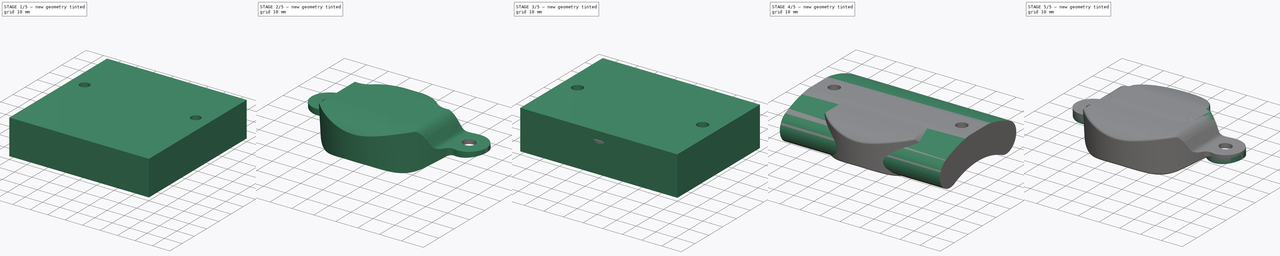
[diagram: build sequence overview — one tinted view per stage of 5, left to right]
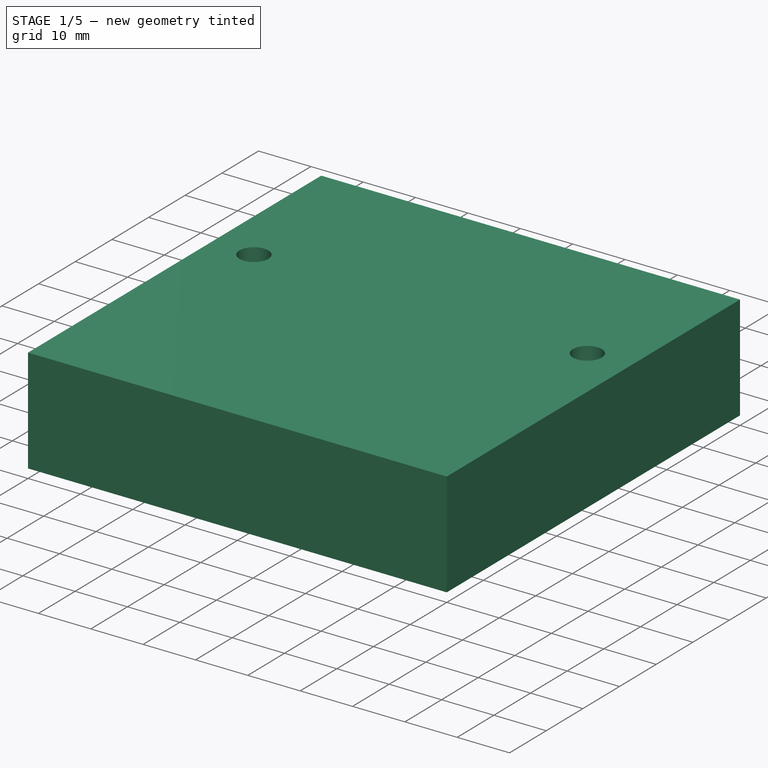
[diagram: stage 1 of 5 — iso view after this stage's code; geometry added in this stage tinted green]
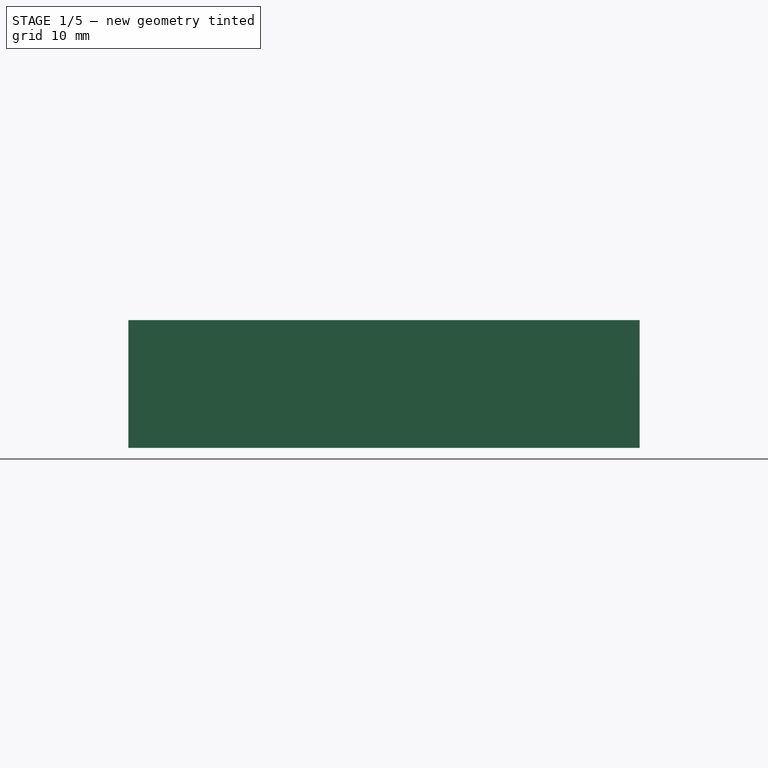
[diagram: stage 1 of 5 — front view after this stage's code; geometry added in this stage tinted green]
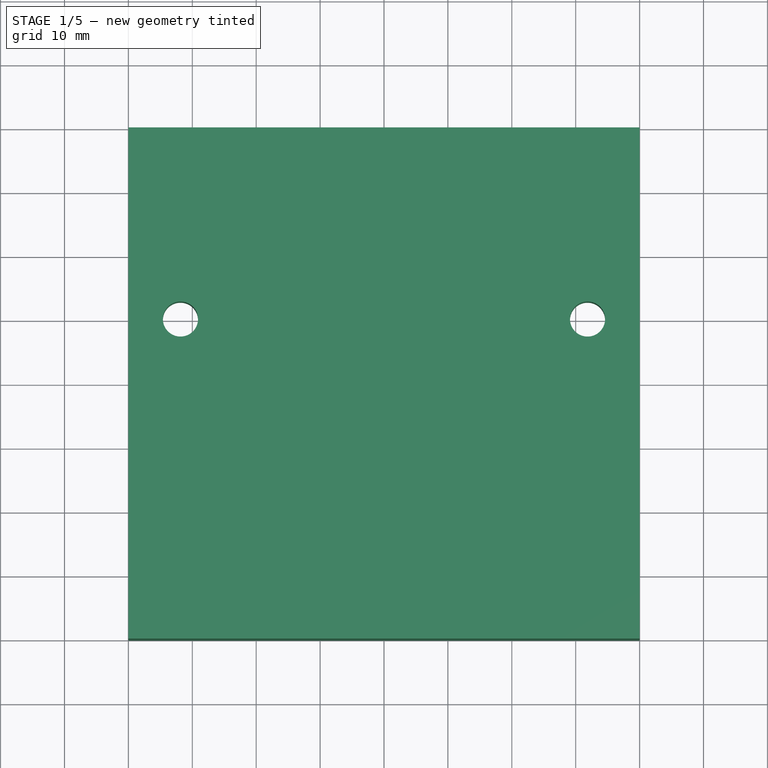
[diagram: stage 1 of 5 — top view after this stage's code; geometry added in this stage tinted green]
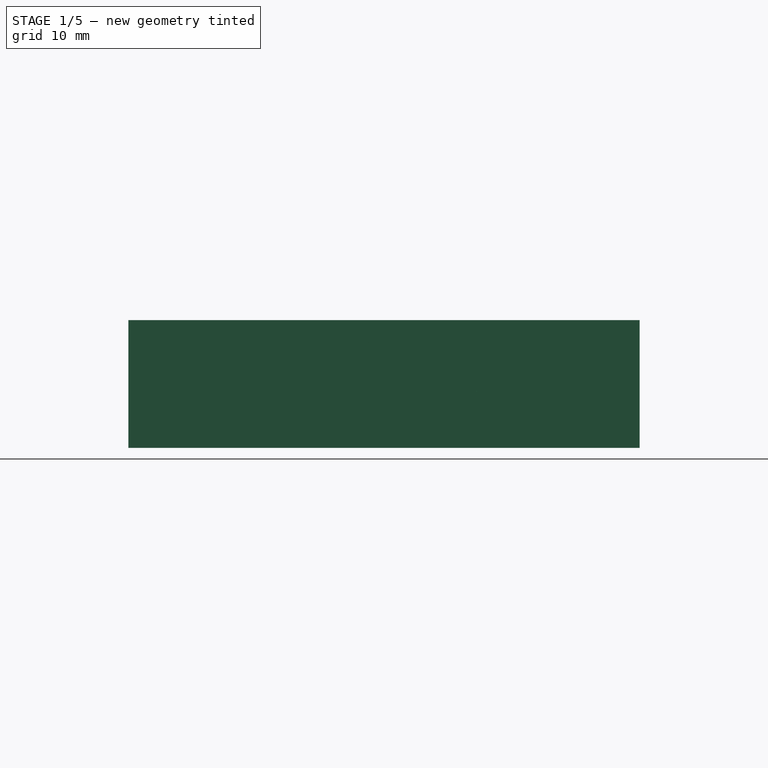
[diagram: stage 1 of 5 — right view after this stage's code; geometry added in this stage tinted green]
FCSTD DOCUMENT  (FreeCAD 1.1R20251125 (Git shallow))
Label: cube_tag_holder
License: All rights reserved
objects: Sketcher::SketchObject×14, PartDesign::Pocket×12, PartDesign::Fillet×3, PartDesign::Pad×2, PartDesign::Plane×2, App::Point×2, PartDesign::Body×2, PartDesign::Chamfer×1
note: 86 computed .brp shape members not serialized (recipe doc carries the construction recipe); baked Part::Feature solids carry a one-line shape summary decoded from their .brp

FEATURE [PartDesign::Body] Body  label="VariantA"
  AllowCompound = false
  Group = -> [Sketch,Pad,Sketch001,Pocket,DatumPlane,Sketch002,Pocket001,Fillet,Sketch005,Pocket003,Sketch006,Pocket004,Sketch007,Pocket005,Sketch008,Pocket006,Fillet001,Chamfer]
  Origin = -> Origin
  Tip = -> Chamfer
FEATURE [PartDesign::Plane] DatumPlane001
  AttachmentOffset = pos=(0,0,13) rot=(1,0,0;0.087266rad)
  AttachmentSupport = -> [XY_Plane001]
  Length = 93.4494
  MapMode = 2
  Placement = pos=(0,0,13) rot=(1,0,0;0.087266rad)
  ResizeMode = 0
  Width = 73.0631
FEATURE [App::Point] Origin004
  Role = Origin
FEATURE [Sketcher::SketchObject] Sketch009
  ArcFitTolerance = 1e-06
  AttachmentSupport = -> [XY_Plane001]
  ExternalTypes = [0]
  FullyConstrained = true
  MakeInternals = false
  MapMode = 5
  sketch-geometry (5):
    g0: LineSegment StartX=-40 StartY=-50 StartZ=0 EndX=40 EndY=-50 EndZ=0
    g1: LineSegment StartX=40 StartY=-50 StartZ=0 EndX=40 EndY=30 EndZ=0
    g2: LineSegment StartX=40 StartY=30 StartZ=0 EndX=-40 EndY=30 EndZ=0
    g3: LineSegment StartX=-40 StartY=30 StartZ=0 EndX=-40 EndY=-50 EndZ=0
    g4: GeomPoint [constr] X=0 Y=0 Z=0
  constraints (13):
    c: Coincident(g0,g1)
    c: Coincident(g1,g2)
    c: Coincident(g2,g3)
    c: Coincident(g3,g0)
    c: Horizontal(g0)
    c: Horizontal(g2)
    c: Vertical(g1)
    c: Vertical(g3)
    c: Distance(g1,g3) = 80
    c: Distance(g0,g2) = 80
    c: Coincident(g4,g-1)
    c: DistanceX(g2,g-1) = 40
    c: DistanceY(g-1,g1) = 30
FEATURE [PartDesign::Pad] Pad001
  Direction = (0,0,1)
  Length = 20
  Length2 = 10
  Profile = -> Sketch009
  ReferenceAxis = -> Sketch009 [N_Axis]
  Refine = true
  SideType = 0
  Suppressed = false
  Type = 0
  Type2 = 0
FEATURE [Sketcher::SketchObject] Sketch010
  ArcFitTolerance = 1e-06
  AttachmentSupport = -> [Pad001]
  ExternalTypes = [0]
  FullyConstrained = true
  MakeInternals = false
  MapMode = 5
  Placement = pos=(0,0,20) rot=(0,0,1;0rad)
  sketch-geometry (2):
    g0: Circle CenterX=31.85 CenterY=0 CenterZ=0 NormalX=0 NormalY=0 NormalZ=1 AngleXU=0 Radius=2.75
    g1: Circle CenterX=-31.85 CenterY=0 CenterZ=0 NormalX=0 NormalY=0 NormalZ=1 AngleXU=0 Radius=2.75
  constraints (6):
    c: Diameter(g0) = 5.5
    c: PointOnObject(g0,g-1)
    c: PointOnObject(g1,g-1)
    c: Equal(g0,g1)
    c: DistanceX(g1,g0) = 63.7
    c: DistanceX(g-1,g0) = 31.85
FEATURE [PartDesign::Pocket] Pocket007
  BaseFeature = -> Pad001
  Direction = (0,0,-1)
  Length = 5
  Length2 = 5
  Profile = -> Sketch010
  ReferenceAxis = -> Sketch010 [N_Axis]
  Refine = true
  SideType = 0
  Suppressed = false
  Type = 1
  Type2 = 0
FEATURE [Sketcher::SketchObject] Sketch011
  ArcFitTolerance = 1e-06
  AttachmentSupport = -> [DatumPlane001]
  ExternalTypes = [0]
  FullyConstrained = true
  MakeInternals = false
  MapMode = 5
  Placement = pos=(0,-2e-16,13) rot=(1,0,0;0.087266rad)
  sketch-geometry (1):
    g0: Circle CenterX=0 CenterY=-10 CenterZ=0 NormalX=0 NormalY=0 NormalZ=1 AngleXU=0 Radius=18.5
  constraints (3):
    c: Diameter(g0) = 37
    c: PointOnObject(g0,g-2)
    c: DistanceY(g0,g-1) = 10
FEATURE [PartDesign::Pocket] Pocket008
  BaseFeature = -> Pocket007
  Direction = (0,0.0871557,-0.996195)
  Length = 9
  Length2 = 5
  Profile = -> Sketch011
  ReferenceAxis = -> Sketch011 [N_Axis]
  Refine = true
  SideType = 2
  Suppressed = false
  Type = 0
  Type2 = 0
FEATURE [Sketcher::SketchObject] Sketch012
  ArcFitTolerance = 1e-06
  AttachmentSupport = -> [XY_Plane001]
  ExternalTypes = [0]
  FullyConstrained = true
  MakeInternals = false
  MapMode = 5
  sketch-geometry (2):
    g0: Circle CenterX=31.85 CenterY=0 CenterZ=0 NormalX=0 NormalY=0 NormalZ=1 AngleXU=0 Radius=6
    g1: Circle CenterX=-31.85 CenterY=0 CenterZ=0 NormalX=0 NormalY=0 NormalZ=1 AngleXU=0 Radius=6
  constraints (6):
    c: PointOnObject(g0,g-1)
    c: PointOnObject(g1,g-1)
    c: Diameter(g1) = 12
    c: Equal(g0,g1)
    c: Distance(g0,g1) = 63.7
    c: Distance(g0,g-2) = 31.85
FEATURE [PartDesign::Pocket] Pocket009
  BaseFeature = -> Pocket008
  Direction = (0,0,-1)
  Length = 7.5
  Length2 = 5
  Profile = -> Sketch012
  ReferenceAxis = -> Sketch012 [N_Axis]
  Refine = true
  Reversed = true
  SideType = 0
  Suppressed = false
  Type = 0
  Type2 = 0
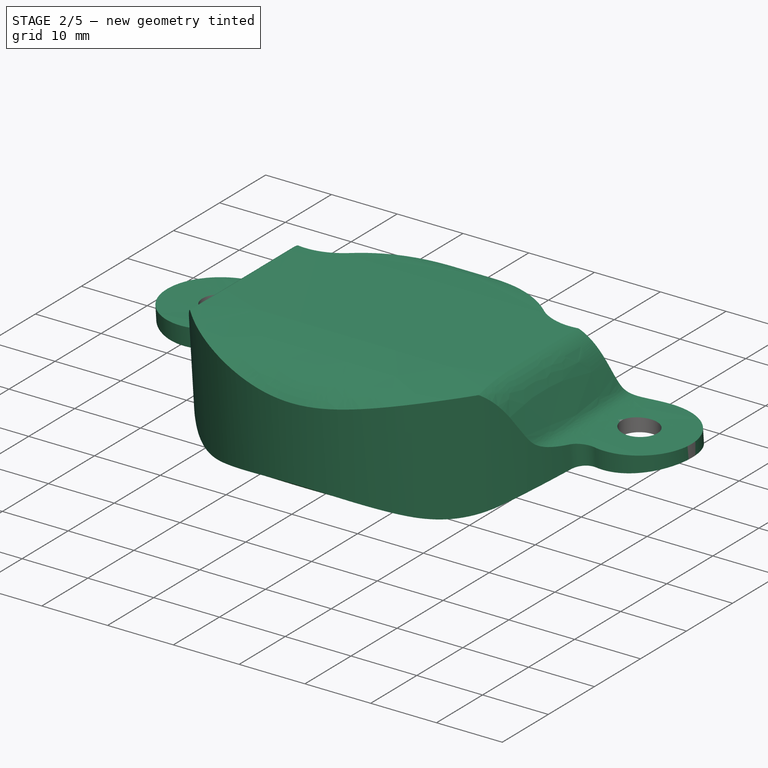
[diagram: stage 2 of 5 — iso view after this stage's code; geometry added in this stage tinted green]
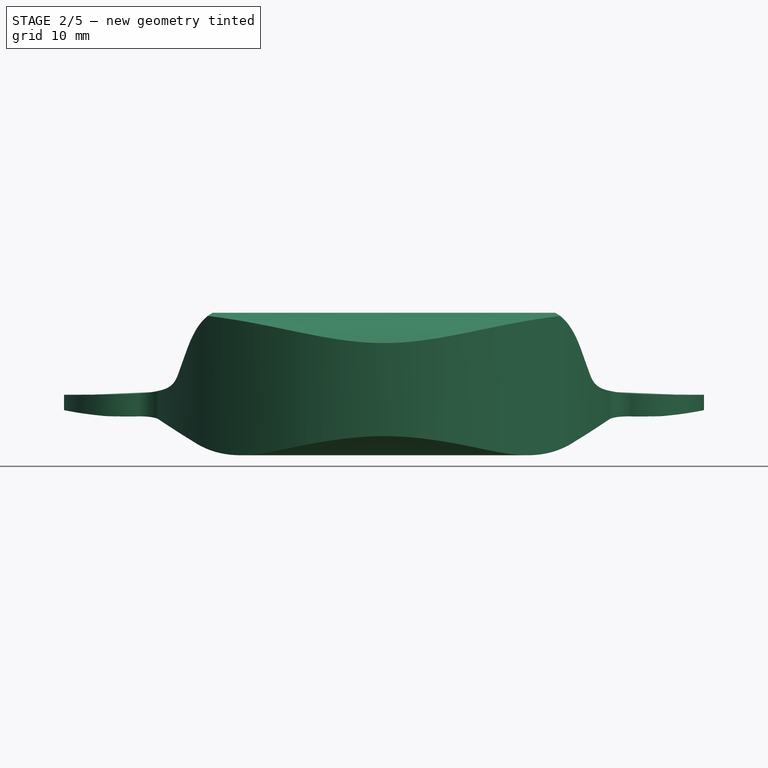
[diagram: stage 2 of 5 — front view after this stage's code; geometry added in this stage tinted green]
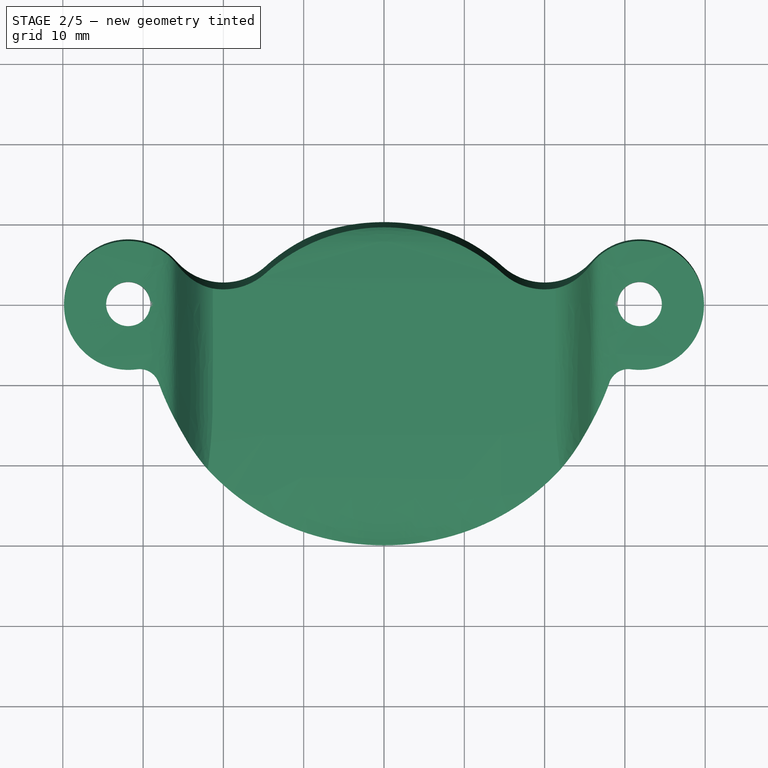
[diagram: stage 2 of 5 — top view after this stage's code; geometry added in this stage tinted green]
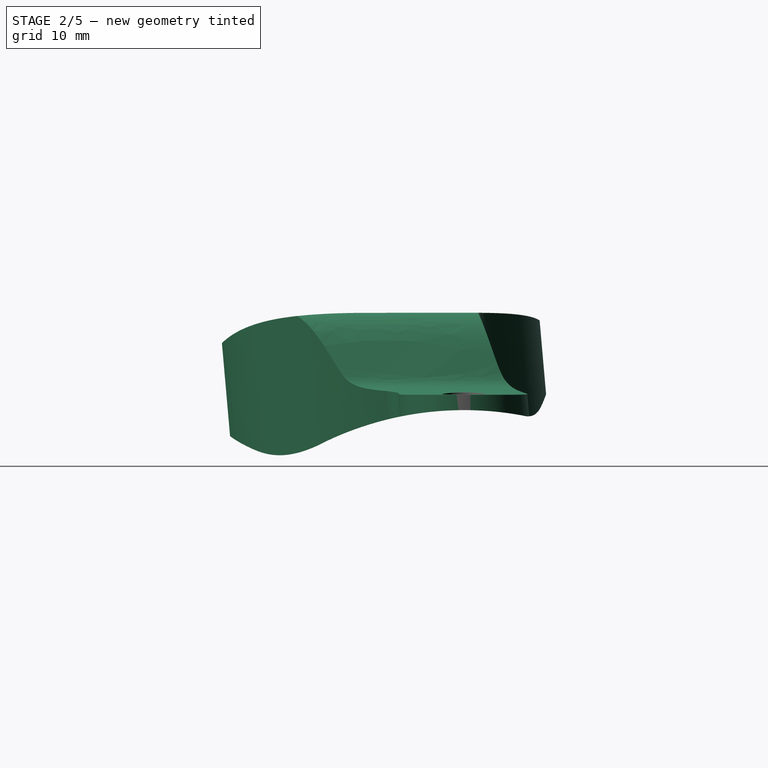
[diagram: stage 2 of 5 — right view after this stage's code; geometry added in this stage tinted green]
FEATURE [Sketcher::SketchObject] Sketch013
  ArcFitTolerance = 1e-06
  AttachmentSupport = -> [Pocket009]
  ExternalTypes = [0]
  FullyConstrained = false
  MakeInternals = false
  MapMode = 5
  Placement = pos=(40,0,0) rot=(0.57735,0.57735,0.57735;2.0944rad)
  sketch-geometry (36):
    g0: LineSegment StartX=100 StartY=-27.5 StartZ=0 EndX=100 EndY=27.5 EndZ=0
    g1: LineSegment StartX=100 StartY=27.5 StartZ=0 EndX=-100 EndY=27.5 EndZ=0
    g2: LineSegment StartX=-100 StartY=27.5 StartZ=0 EndX=-100 EndY=-27.5 EndZ=0
    g3: LineSegment StartX=-100 StartY=-27.5 StartZ=0 EndX=100 EndY=-27.5 EndZ=0
    g4: GeomPoint [constr] X=0 Y=0 Z=0
    g5: ArcOfCircle CenterX=0 CenterY=-32.5539 CenterZ=0 NormalX=0 NormalY=0 NormalZ=1 AngleXU=0 Radius=40 StartAngle=1.38736 EndAngle=2.016
    g6-g12: GeomPoint [constr] x7 (B-spline internal-alignment scaffolding for g13; pole/knot coordinates omitted)
    g13: BSplineCurve PolesCount=9 KnotsCount=7 Degree=3 IsPeriodic=0
    g14-g22: Circle [constr] x9 (B-spline internal-alignment scaffolding for g13; pole/knot coordinates omitted)
    g23-g27: GeomPoint [constr] x5 (B-spline internal-alignment scaffolding for g28; pole/knot coordinates omitted)
    g28: BSplineCurve PolesCount=7 KnotsCount=5 Degree=3 IsPeriodic=0
    g29-g35: Circle [constr] x7 (B-spline internal-alignment scaffolding for g28; pole/knot coordinates omitted)
  constraints (56):
    c: Coincident(g0,g1)
    c: Coincident(g1,g2)
    c: Coincident(g2,g3)
    c: Coincident(g3,g0)
    c: Vertical(g0)
    c: Vertical(g2)
    c: Horizontal(g1)
    c: Horizontal(g3)
    c: Symmetric(g2,g0,g4)
    c: Coincident(g4,g-1)
    c: DistanceX(g1,g1) = 200
    c: DistanceY(g2,g2) = 55
    c: PointOnObject(g5,g-2)
    c: Radius(g5) = 40
    c: InternalAlignment(g6-g12 -> g13) x7
    c: InternalAlignment(g14,g13)
    c: Weight(g14) = 1
    c: InternalAlignment(g15,g13)
    c: Equal(g15,g14)
    c: InternalAlignment(g16,g13)
    c: Equal(g16,g14)
    c: InternalAlignment(g17,g13)
    c: Equal(g17,g14)
    c: InternalAlignment(g18,g13)
    c: Equal(g18,g14)
    c: InternalAlignment(g19,g13)
    c: Equal(g19,g14)
    c: InternalAlignment(g20,g13)
    c: Equal(g20,g14)
    c: InternalAlignment(g21,g13)
    c: Equal(g21,g14)
    c: InternalAlignment(g22,g13)
    c: Equal(g22,g14)
    c: Coincident(g6,g5)
    c: PointOnObject(g12,g-2)
    c: Horizontal(g12,g21)
    c: Horizontal(g21,g20)
    c: InternalAlignment(g23-g27 -> g28) x5
    c: InternalAlignment(g29,g28)
    c: Weight(g29) = 1
    c: InternalAlignment(g30,g28)
    c: Equal(g30,g29)
    c: InternalAlignment(g31,g28)
    c: Equal(g31,g29)
    c: InternalAlignment(g32,g28)
    c: Equal(g32,g29)
    c: InternalAlignment(g33,g28)
    c: Equal(g33,g29)
    c: InternalAlignment(g34,g28)
    c: Equal(g34,g29)
    c: InternalAlignment(g35,g28)
    c: Equal(g35,g29)
    c: Coincident(g23,g5)
    c: Coincident(g27,g13)
    c: Horizontal(g33,g34)
    c: Horizontal(g34,g28)
FEATURE [PartDesign::Pocket] Pocket010
  BaseFeature = -> Pocket009
  Direction = (-1,0,0)
  Length = 5
  Length2 = 5
  Profile = -> Sketch013
  ReferenceAxis = -> Sketch013 [N_Axis]
  Refine = true
  SideType = 0
  Suppressed = false
  Type = 3
  Type2 = 0
  UpToFace = -> Pocket009 [Face2]
FEATURE [Sketcher::SketchObject] Sketch014
  ArcFitTolerance = 1e-06
  AttachmentSupport = -> [DatumPlane001]
  ExternalGeometry = -> [Pocket010]
  ExternalTypes = [0,0,0,0,0,0]
  FullyConstrained = false
  MakeInternals = false
  MapMode = 5
  Placement = pos=(0,-2e-16,13) rot=(1,0,0;0.087266rad)
  sketch-geometry (13):
    g0: LineSegment StartX=60 StartY=-60 StartZ=0 EndX=60 EndY=60 EndZ=0
    g1: LineSegment StartX=60 StartY=60 StartZ=0 EndX=-60 EndY=60 EndZ=0
    g2: LineSegment StartX=-60 StartY=60 StartZ=0 EndX=-60 EndY=-60 EndZ=0
    g3: LineSegment StartX=-60 StartY=-60 StartZ=0 EndX=60 EndY=-60 EndZ=0
    g4: GeomPoint [constr] X=0 Y=0 Z=0
    g5: ArcOfCircle CenterX=31.85 CenterY=-0.479357 CenterZ=0 NormalX=0 NormalY=0 NormalZ=1 AngleXU=0 Radius=8 StartAngle=4.57579 EndAngle=8.69564
    g6: ArcOfCircle CenterX=-31.85 CenterY=-0.479357 CenterZ=0 NormalX=0 NormalY=0 NormalZ=1 AngleXU=0 Radius=8 StartAngle=0.729138 EndAngle=4.84899
    g7: ArcOfCircle CenterX=-30.4202 CenterY=-10.8815 CenterZ=0 NormalX=0 NormalY=0 NormalZ=1 AngleXU=0 Radius=2.5 StartAngle=0.343525 EndAngle=1.7074
    g8: ArcOfCircle CenterX=30.4202 CenterY=-10.8815 CenterZ=0 NormalX=0 NormalY=0 NormalZ=1 AngleXU=0 Radius=2.5 StartAngle=1.4342 EndAngle=2.79807
    g9: ArcOfCircle CenterX=20 CenterY=10.107 CenterZ=0 NormalX=0 NormalY=0 NormalZ=1 AngleXU=0 Radius=7.89 StartAngle=3.98297 EndAngle=5.55405
    g10: ArcOfCircle CenterX=-20 CenterY=10.107 CenterZ=0 NormalX=0 NormalY=0 NormalZ=1 AngleXU=0 Radius=7.89 StartAngle=3.87073 EndAngle=5.44181
    g11: ArcOfCircle CenterX=0 CenterY=0 CenterZ=0 NormalX=0 NormalY=0 NormalZ=1 AngleXU=0 Radius=29.8078 StartAngle=3.48512 EndAngle=5.93966
    g12: ArcOfCircle CenterX=0 CenterY=-12.2677 CenterZ=0 NormalX=0 NormalY=0 NormalZ=1 AngleXU=0 Radius=22.1205 StartAngle=0.841379 EndAngle=2.30021
  constraints (29):
    c: Coincident(g0,g1)
    c: Coincident(g1,g2)
    c: Coincident(g2,g3)
    c: Coincident(g3,g0)
    c: Vertical(g0)
    c: Horizontal(g1)
    c: Horizontal(g3)
    c: Symmetric(g2,g0,g4)
    c: Coincident(g4,g-1)
    c: DistanceX(g1,g1) = 120
    c: DistanceY(g2,g2) = 120
    c: Coincident(g5,g-23)
    c: Coincident(g6,g-24)
    c: Tangent(g7,g11) = 1.5708
    c: Coincident(g4,g11)
    c: Diameter(g6) = 16
    c: Tangent(g7,g6) = 1.5708
    c: Diameter(g5) = 16
    c: Tangent(g11,g8) = 1.5708
    c: Tangent(g5,g8) = 1.5708
    c: Radius(g7) = 2.5
    c: Equal(g7,g8)
    c: PointOnObject(g12,g-2)
    c: Tangent(g5,g9) = 1.5708
    c: Tangent(g12,g9) = 1.5708
    c: Tangent(g6,g10) = 1.5708
    c: Tangent(g12,g10) = 1.5708
    c: Radius(g10) = 7.89
    c: Equal(g10,g9)
FEATURE [PartDesign::Pocket] Pocket011
  BaseFeature = -> Pocket010
  Direction = (0,0.0871557,-0.996195)
  Length = 5
  Length2 = 5
  Profile = -> Sketch014
  ReferenceAxis = -> Sketch014 [N_Axis]
  Refine = true
  SideType = 1
  Suppressed = false
  Type = 1
  Type2 = 1
FEATURE [Sketcher::SketchObject] Sketch015
  ArcFitTolerance = 1e-06
  AttachmentSupport = -> [Origin003]
  ExternalTypes = [0]
  FullyConstrained = false
  MakeInternals = false
  MapMode = 5
  Placement = pos=(0,0,0) rot=(1,0,0;1.5708rad)
  sketch-geometry (25):
    g0: LineSegment StartX=55.1371 StartY=12.8511 StartZ=0 EndX=55.1371 EndY=39.0441 EndZ=0
    g1: LineSegment StartX=55.1371 StartY=39.0441 StartZ=0 EndX=-55.1371 EndY=39.0441 EndZ=0
    g2: LineSegment StartX=-55.1371 StartY=39.0441 StartZ=0 EndX=-55.1371 EndY=12.8511 EndZ=0
    g3: GeomPoint [constr] X=0 Y=0 Z=0
    g4: LineSegment StartX=-19.514 StartY=20 StartZ=0 EndX=19.514 EndY=20 EndZ=0
    g5-g9: Circle [constr] x5 (B-spline internal-alignment scaffolding for g10; pole/knot coordinates omitted)
    g10: BSplineCurve PolesCount=5 KnotsCount=3 Degree=3 IsPeriodic=0
    g11: GeomPoint [constr] X=19.514 Y=20 Z=0
    g12: GeomPoint [constr] X=25.572 Y=12.0163 Z=0
    g13: GeomPoint [constr] X=42.5914 Y=9.35507 Z=0
    g14: BSplineCurve PolesCount=5 KnotsCount=3 Degree=3 IsPeriodic=0
    g15-g19: Circle [constr] x5 (B-spline internal-alignment scaffolding for g14; pole/knot coordinates omitted)
    g20: GeomPoint [constr] X=-19.514 Y=20 Z=0
    g21: GeomPoint [constr] X=-25.572 Y=12.0163 Z=0
    g22: GeomPoint [constr] X=-42.5914 Y=9.35507 Z=0
    g23: LineSegment StartX=-42.5914 StartY=9.35507 StartZ=0 EndX=-55.1371 EndY=12.8511 EndZ=0
    g24: LineSegment StartX=42.5914 StartY=9.35507 StartZ=0 EndX=55.1371 EndY=12.8511 EndZ=0
  constraints (27):
    c: Coincident(g0,g1)
    c: Coincident(g1,g2)
    c: Horizontal(g1)
    c: Coincident(g3,g-1)
    c: Coincident(g4,g-3)
    c: Coincident(g4,g-3)
    c: Weight(g5) = 1
    c: Equal(g5, g6-g9) x4
    c: InternalAlignment(g5-g9 -> g10) x5
    c: InternalAlignment(g11,g10)
    c: InternalAlignment(g12,g10)
    c: InternalAlignment(g13,g10)
    c: Distance(g5,g6) = 4
    c: Distance(g7,g8) = 2
    c: Distance(g8,g9) = 15
    c: Coincident(g5,g4)
    c: Weight(g15) = 1
    c: Equal(g15, g16-g19) x4
    c: InternalAlignment(g15-g22 -> g14) x8
    c: Distance(g15,g16) = 4
    c: Distance(g17,g18) = 2
    c: Distance(g18,g19) = 15
    c: Coincident(g23,g14)
    c: Vertical(g2)
    c: Coincident(g23,g2)
    c: Vertical(g0)
    c: Coincident(g0,g24)
FEATURE [PartDesign::Pocket] Pocket012
  BaseFeature = -> Pocket011
  Direction = (0,1,-2e-16)
  Length = 5
  Length2 = 5
  Profile = -> Sketch015
  ReferenceAxis = -> Sketch015 [N_Axis]
  Refine = true
  SideType = 2
  Suppressed = false
  Type = 1
  Type2 = 0
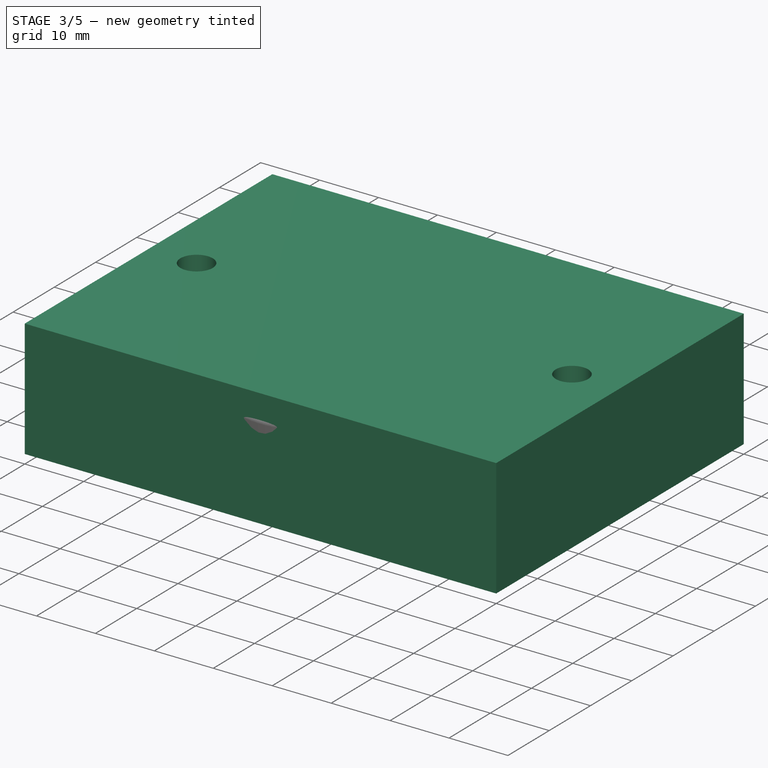
[diagram: stage 3 of 5 — iso view after this stage's code; geometry added in this stage tinted green]
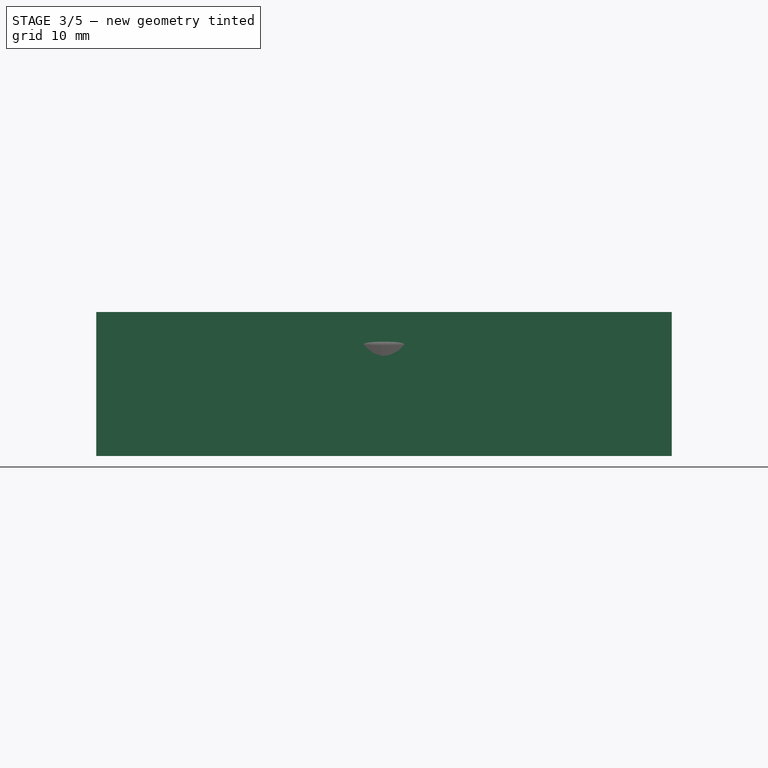
[diagram: stage 3 of 5 — front view after this stage's code; geometry added in this stage tinted green]
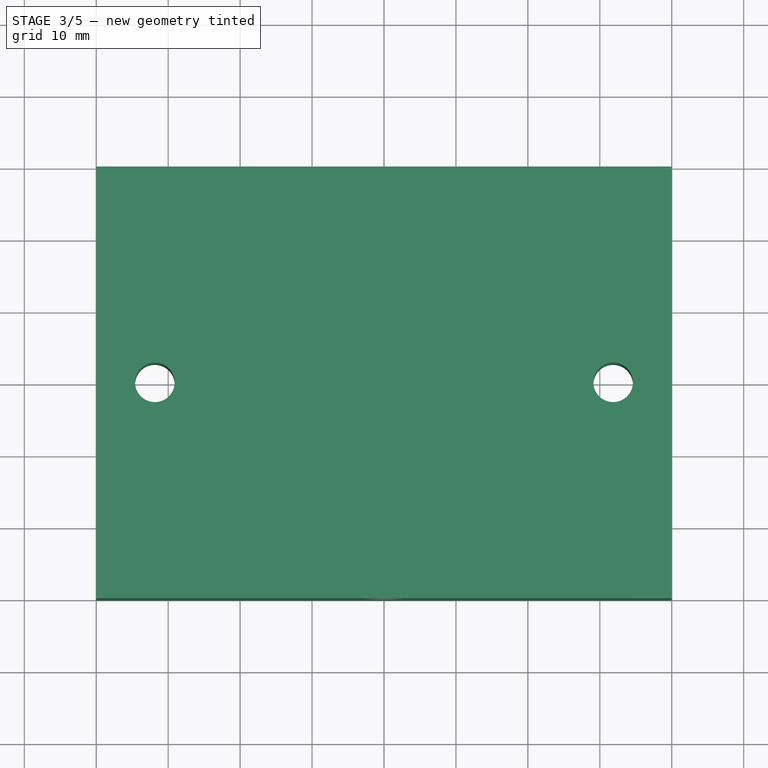
[diagram: stage 3 of 5 — top view after this stage's code; geometry added in this stage tinted green]
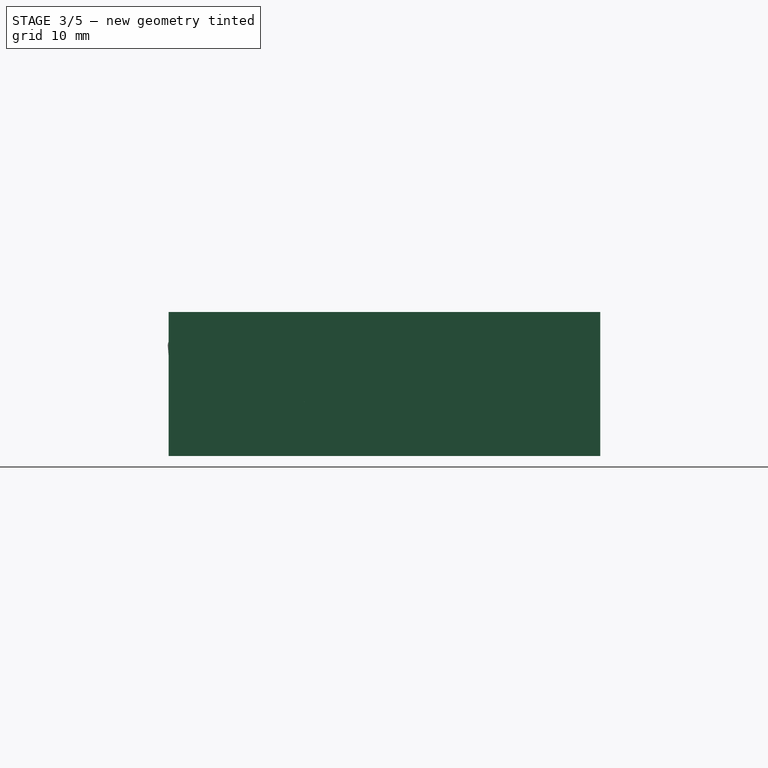
[diagram: stage 3 of 5 — right view after this stage's code; geometry added in this stage tinted green]
FEATURE [Sketcher::SketchObject] Sketch
  ArcFitTolerance = 1e-06
  AttachmentSupport = -> [XY_Plane]
  ExternalTypes = [0]
  FullyConstrained = true
  MakeInternals = false
  MapMode = 5
  sketch-geometry (5):
    g0: LineSegment StartX=-40 StartY=-30 StartZ=0 EndX=40 EndY=-30 EndZ=0
    g1: LineSegment StartX=40 StartY=-30 StartZ=0 EndX=40 EndY=30 EndZ=0
    g2: LineSegment StartX=40 StartY=30 StartZ=0 EndX=-40 EndY=30 EndZ=0
    g3: LineSegment StartX=-40 StartY=30 StartZ=0 EndX=-40 EndY=-30 EndZ=0
    g4: GeomPoint [constr] X=0 Y=0 Z=0
  constraints (12):
    c: Coincident(g0,g1)
    c: Coincident(g1,g2)
    c: Coincident(g2,g3)
    c: Coincident(g3,g0)
    c: Horizontal(g0)
    c: Horizontal(g2)
    c: Vertical(g1)
    c: Vertical(g3)
    c: Symmetric(g2,g0,g4)
    c: Distance(g1,g3) = 80
    c: Distance(g0,g2) = 60
    c: Coincident(g4,g-1)
FEATURE [PartDesign::Pad] Pad
  Direction = (0,0,1)
  Length = 20
  Length2 = 10
  Profile = -> Sketch
  ReferenceAxis = -> Sketch [N_Axis]
  Refine = true
  SideType = 0
  Suppressed = false
  Type = 0
  Type2 = 0
FEATURE [Sketcher::SketchObject] Sketch001
  ArcFitTolerance = 1e-06
  AttachmentSupport = -> [Pad]
  ExternalTypes = [0]
  FullyConstrained = true
  MakeInternals = false
  MapMode = 5
  Placement = pos=(0,0,20) rot=(0,0,1;0rad)
  sketch-geometry (2):
    g0: Circle CenterX=31.85 CenterY=0 CenterZ=0 NormalX=0 NormalY=0 NormalZ=1 AngleXU=0 Radius=2.75
    g1: Circle CenterX=-31.85 CenterY=0 CenterZ=0 NormalX=0 NormalY=0 NormalZ=1 AngleXU=0 Radius=2.75
  constraints (6):
    c: Diameter(g0) = 5.5
    c: PointOnObject(g0,g-1)
    c: PointOnObject(g1,g-1)
    c: Equal(g0,g1)
    c: DistanceX(g1,g0) = 63.7
    c: DistanceX(g-1,g0) = 31.85
FEATURE [PartDesign::Pocket] Pocket
  BaseFeature = -> Pad
  Direction = (0,0,-1)
  Length = 5
  Length2 = 5
  Profile = -> Sketch001
  ReferenceAxis = -> Sketch001 [N_Axis]
  Refine = true
  SideType = 0
  Suppressed = false
  Type = 1
  Type2 = 0
FEATURE [PartDesign::Plane] DatumPlane
  AttachmentOffset = pos=(0,0,13) rot=(0,0,1;0rad)
  AttachmentSupport = -> [XY_Plane]
  Length = 92.3254
  MapMode = 2
  Placement = pos=(0,0,13) rot=(0,0,1;0rad)
  ResizeMode = 0
  Width = 62.6254
FEATURE [Sketcher::SketchObject] Sketch002
  ArcFitTolerance = 1e-06
  AttachmentSupport = -> [DatumPlane]
  ExternalTypes = [0]
  FullyConstrained = true
  MakeInternals = false
  MapMode = 5
  Placement = pos=(0,0,13) rot=(0,0,1;0rad)
  sketch-geometry (1):
    g0: Circle CenterX=0 CenterY=0 CenterZ=0 NormalX=0 NormalY=0 NormalZ=1 AngleXU=0 Radius=18.5
  constraints (2):
    c: Diameter(g0) = 37
    c: Coincident(g0,g-1)
FEATURE [PartDesign::Pocket] Pocket001
  BaseFeature = -> Pocket
  Direction = (0,0,-1)
  Length = 9
  Length2 = 5
  Profile = -> Sketch002
  ReferenceAxis = -> Sketch002 [N_Axis]
  Refine = true
  SideType = 2
  Suppressed = false
  Type = 0
  Type2 = 0
FEATURE [PartDesign::Fillet] Fillet002
  Base = -> Pocket012 [Edge5,Edge13,Edge46,Edge12,Edge14]
  BaseFeature = -> Pocket012
  Radius = 1
  Refine = true
  SupportTransform = false
  Suppressed = false
  UseAllEdges = false
FEATURE [PartDesign::Body] Body001  label="VariantB"
  AllowCompound = true
  Group = -> [Sketch009,Pad001,Sketch010,Pocket007,DatumPlane001,Sketch011,Pocket008,Sketch012,Pocket009,Sketch013,Pocket010,Sketch014,Pocket011,Sketch015,Pocket012,Fillet002]
  Origin = -> Origin003
  Tip = -> Fillet002
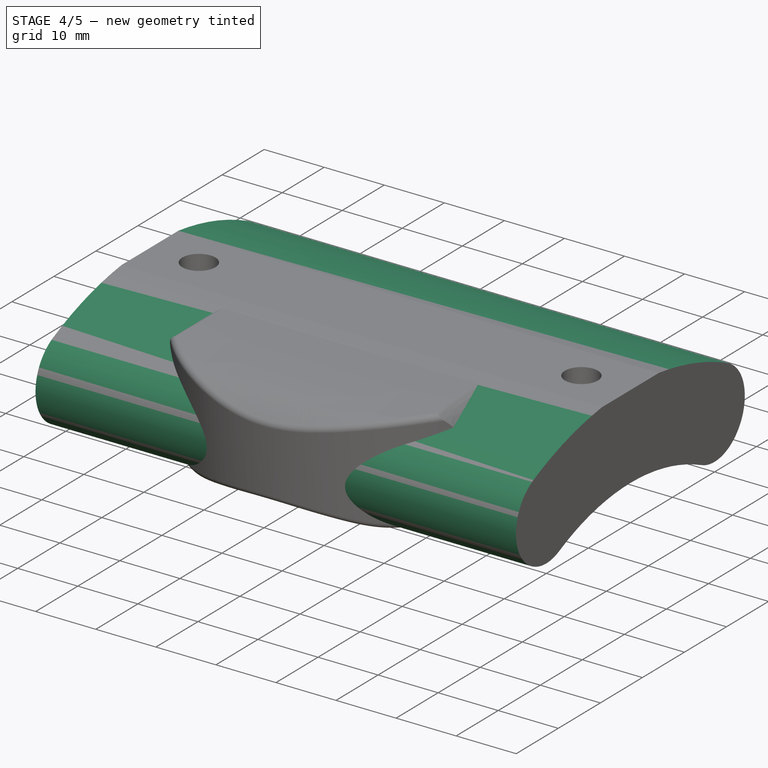
[diagram: stage 4 of 5 — iso view after this stage's code; geometry added in this stage tinted green]
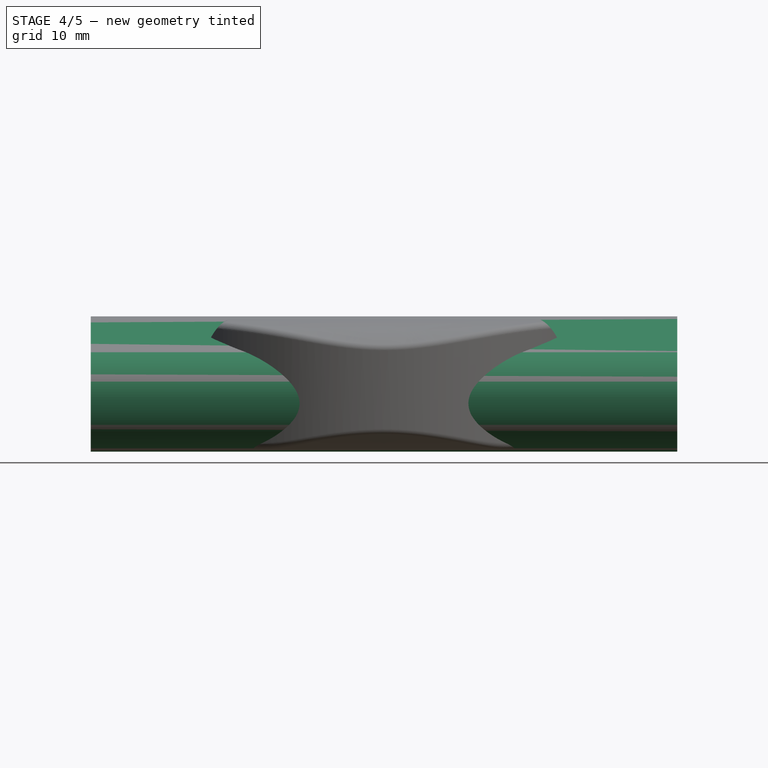
[diagram: stage 4 of 5 — front view after this stage's code; geometry added in this stage tinted green]
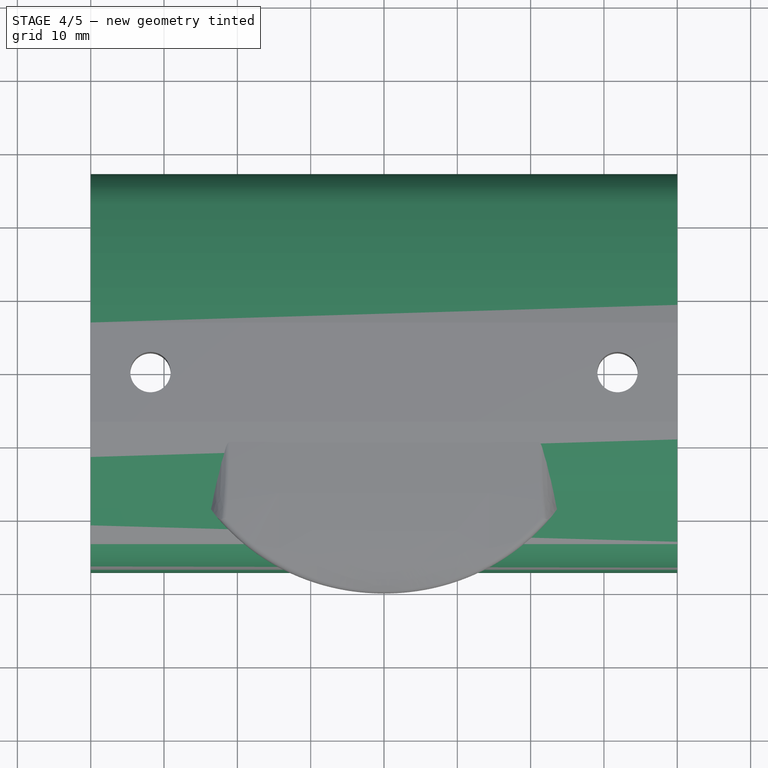
[diagram: stage 4 of 5 — top view after this stage's code; geometry added in this stage tinted green]
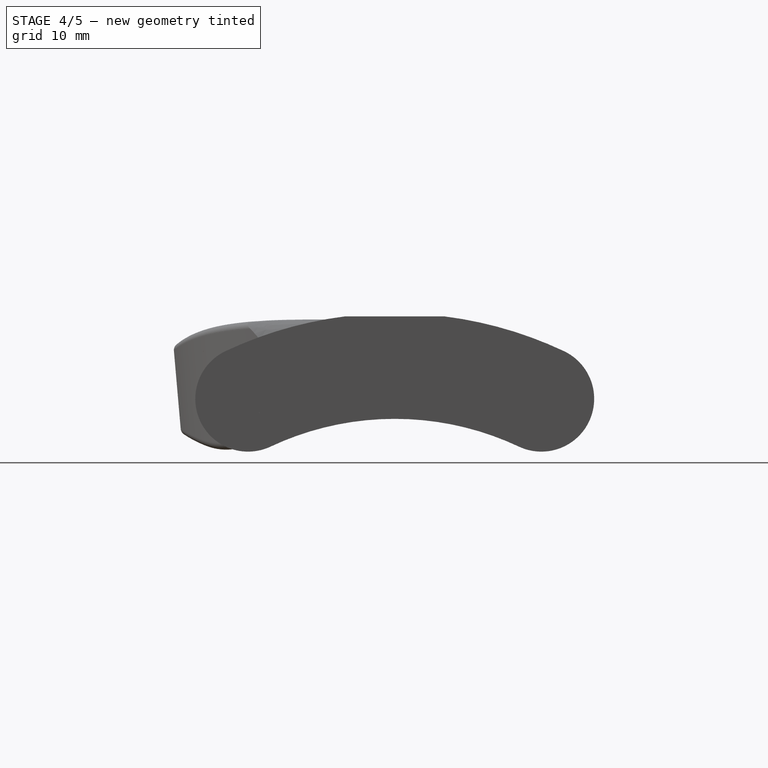
[diagram: stage 4 of 5 — right view after this stage's code; geometry added in this stage tinted green]
FEATURE [PartDesign::Fillet] Fillet
  Base = -> Pocket001 [Edge21,Edge20]
  BaseFeature = -> Pocket001
  Radius = 2
  Refine = true
  SupportTransform = false
  Suppressed = false
  UseAllEdges = false
FEATURE [Sketcher::SketchObject] Sketch005
  ArcFitTolerance = 1e-06
  AttachmentSupport = -> [XY_Plane]
  ExternalTypes = [0]
  FullyConstrained = true
  MakeInternals = false
  MapMode = 5
  sketch-geometry (2):
    g0: Circle CenterX=31.85 CenterY=0 CenterZ=0 NormalX=0 NormalY=0 NormalZ=1 AngleXU=0 Radius=6
    g1: Circle CenterX=-31.85 CenterY=0 CenterZ=0 NormalX=0 NormalY=0 NormalZ=1 AngleXU=0 Radius=6
  constraints (6):
    c: PointOnObject(g0,g-1)
    c: PointOnObject(g1,g-1)
    c: Diameter(g1) = 12
    c: Equal(g0,g1)
    c: Distance(g0,g1) = 63.7
    c: Distance(g0,g-2) = 31.85
FEATURE [PartDesign::Pocket] Pocket003
  BaseFeature = -> Fillet
  Direction = (0,0,-1)
  Length = 7.5
  Length2 = 5
  Profile = -> Sketch005
  ReferenceAxis = -> Sketch005 [N_Axis]
  Refine = true
  Reversed = true
  SideType = 0
  Suppressed = false
  Type = 0
  Type2 = 0
FEATURE [App::Point] Origin002  label="Origin"
  Role = Origin
FEATURE [Sketcher::SketchObject] Sketch006
  ArcFitTolerance = 1e-06
  AttachmentSupport = -> [Pocket003]
  ExternalTypes = [0]
  FullyConstrained = false
  MakeInternals = false
  MapMode = 5
  Placement = pos=(40,0,0) rot=(0.57735,0.57735,0.57735;2.0944rad)
  sketch-geometry (9):
    g0: ArcOfCircle CenterX=0 CenterY=-33.7367 CenterZ=0 NormalX=0 NormalY=0 NormalZ=1 AngleXU=0 Radius=54.1612 StartAngle=1.13086 EndAngle=2.01073
    g1: ArcOfCircle CenterX=-20 CenterY=8.75279 CenterZ=0 NormalX=0 NormalY=0 NormalZ=1 AngleXU=0 Radius=7.2 StartAngle=2.01073 EndAngle=5.15233
    g2: ArcOfCircle CenterX=20 CenterY=8.75279 CenterZ=0 NormalX=0 NormalY=0 NormalZ=1 AngleXU=0 Radius=7.2 StartAngle=4.27245 EndAngle=7.41404
    g3: ArcOfCircle CenterX=0 CenterY=-33.7367 CenterZ=0 NormalX=0 NormalY=0 NormalZ=1 AngleXU=0 Radius=39.7612 StartAngle=1.13086 EndAngle=2.01073
    g4: LineSegment StartX=35 StartY=-27.5 StartZ=0 EndX=35 EndY=27.5 EndZ=0
    g5: LineSegment StartX=35 StartY=27.5 StartZ=0 EndX=-35 EndY=27.5 EndZ=0
    g6: LineSegment StartX=-35 StartY=27.5 StartZ=0 EndX=-35 EndY=-27.5 EndZ=0
    g7: LineSegment StartX=-35 StartY=-27.5 StartZ=0 EndX=35 EndY=-27.5 EndZ=0
    g8: GeomPoint [constr] X=0 Y=0 Z=0
  constraints (21):
    c: Coincident(g0,g3)
    c: Tangent(g3,g2) = 1.5708
    c: Tangent(g3,g1) = 1.5708
    c: Tangent(g0,g2) = -1.5708
    c: Tangent(g0,g1) = -1.5708
    c: PointOnObject(g0,g-2)
    c: Horizontal(g1,g2)
    c: DistanceX(g-1,g2) = 20
    c: Radius(g2) = 7.2
    c: Coincident(g4,g5)
    c: Coincident(g5,g6)
    c: Coincident(g6,g7)
    c: Coincident(g7,g4)
    c: Vertical(g4)
    c: Vertical(g6)
    c: Horizontal(g5)
    c: Horizontal(g7)
    c: Symmetric(g6,g4,g8)
    c: Coincident(g8,g-1)
    c: DistanceX(g5,g5) = 70
    c: DistanceY(g6,g6) = 55
FEATURE [PartDesign::Pocket] Pocket004
  BaseFeature = -> Pocket003
  Direction = (-1,0,0)
  Length = 5
  Length2 = 5
  Profile = -> Sketch006
  ReferenceAxis = -> Sketch006 [N_Axis]
  Refine = true
  SideType = 0
  Suppressed = false
  Type = 3
  Type2 = 0
  UpToFace = -> Pocket003 [Face2]
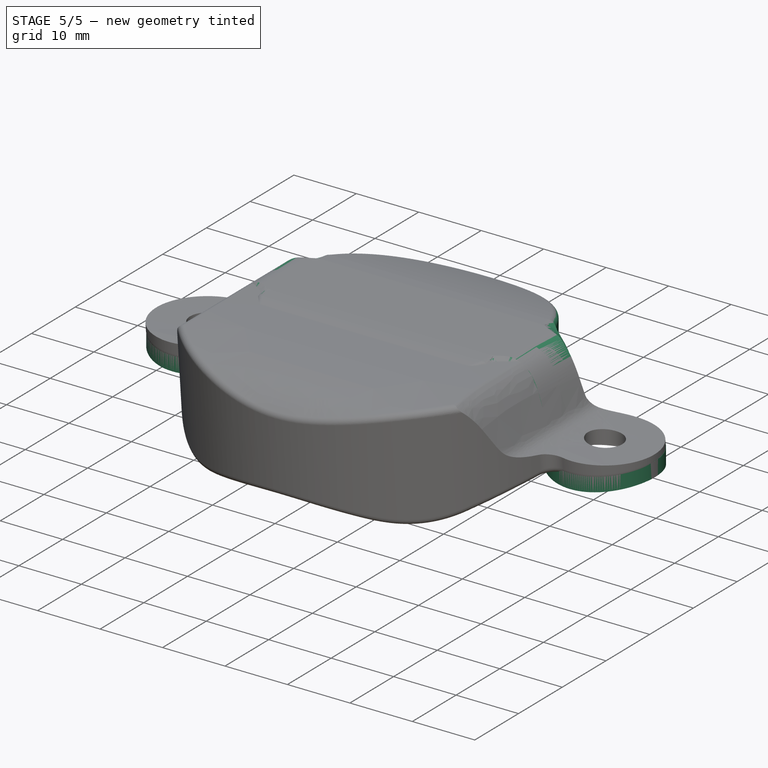
[diagram: stage 5 of 5 — iso view after this stage's code; geometry added in this stage tinted green]
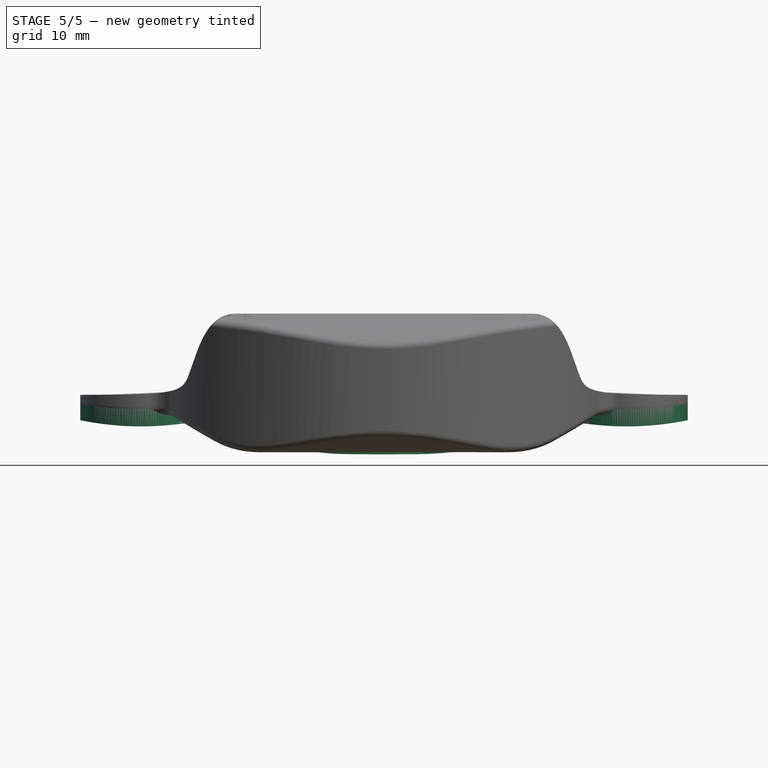
[diagram: stage 5 of 5 — front view after this stage's code; geometry added in this stage tinted green]
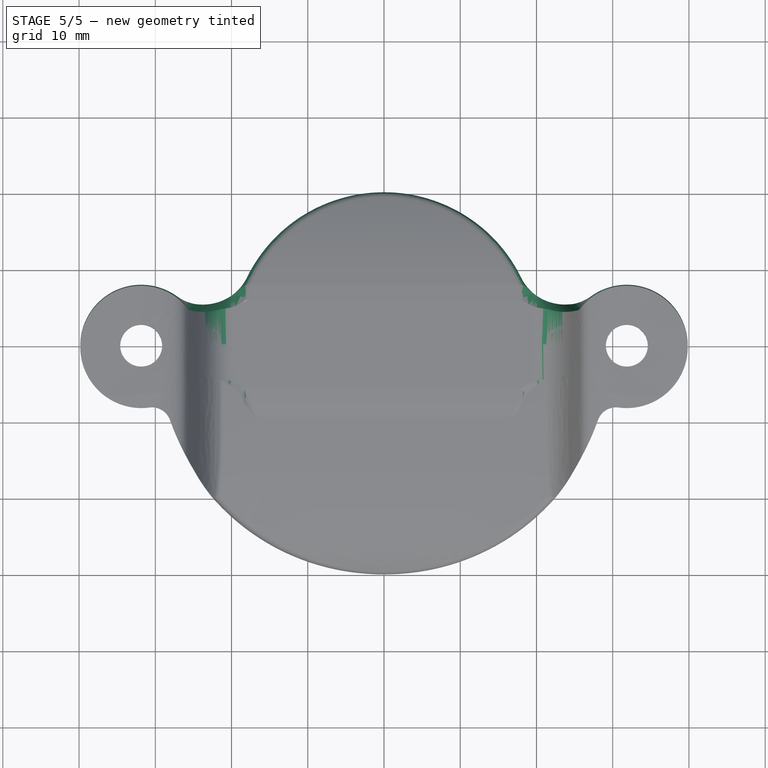
[diagram: stage 5 of 5 — top view after this stage's code; geometry added in this stage tinted green]
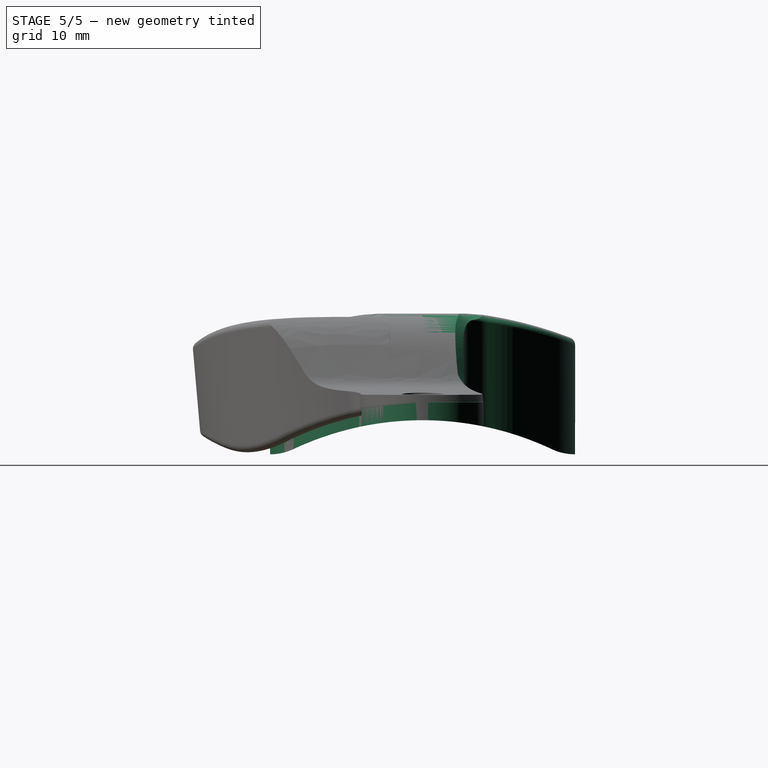
[diagram: stage 5 of 5 — right view after this stage's code; geometry added in this stage tinted green]
FEATURE [Sketcher::SketchObject] Sketch007
  ArcFitTolerance = 1e-06
  AttachmentSupport = -> [DatumPlane]
  ExternalGeometry = -> [Pocket004]
  ExternalTypes = [0,0,0,0,0,0]
  FullyConstrained = false
  MakeInternals = false
  MapMode = 5
  Placement = pos=(0,0,13) rot=(0,0,1;0rad)
  sketch-geometry (13):
    g0: LineSegment StartX=60 StartY=-60 StartZ=0 EndX=60 EndY=60 EndZ=0
    g1: LineSegment StartX=60 StartY=60 StartZ=0 EndX=-60 EndY=60 EndZ=0
    g2: LineSegment StartX=-60 StartY=60 StartZ=0 EndX=-60 EndY=-60 EndZ=0
    g3: LineSegment StartX=-60 StartY=-60 StartZ=0 EndX=60 EndY=-60 EndZ=0
    g4: GeomPoint [constr] X=0 Y=0 Z=0
    g5: ArcOfCircle CenterX=0 CenterY=0 CenterZ=0 NormalX=0 NormalY=0 NormalZ=1 AngleXU=0 Radius=20 StartAngle=0.45271 EndAngle=2.68888
    g6: ArcOfCircle CenterX=31.85 CenterY=0 CenterZ=0 NormalX=0 NormalY=0 NormalZ=1 AngleXU=0 Radius=8 StartAngle=4.08284 EndAngle=8.48353
    g7: ArcOfCircle CenterX=-31.85 CenterY=0 CenterZ=0 NormalX=0 NormalY=0 NormalZ=1 AngleXU=0 Radius=8 StartAngle=0.941249 EndAngle=5.34194
    g8: ArcOfCircle CenterX=-23.5176 CenterY=-11.439 CenterZ=0 NormalX=0 NormalY=0 NormalZ=1 AngleXU=0 Radius=6.15202 StartAngle=0.45271 EndAngle=2.20034
    g9: ArcOfCircle CenterX=23.5176 CenterY=-11.439 CenterZ=0 NormalX=0 NormalY=0 NormalZ=1 AngleXU=0 Radius=6.15202 StartAngle=0.94125 EndAngle=2.68888
    g10: ArcOfCircle CenterX=23.5176 CenterY=11.439 CenterZ=0 NormalX=0 NormalY=0 NormalZ=1 AngleXU=0 Radius=6.15202 StartAngle=3.5943 EndAngle=5.34194
    g11: ArcOfCircle CenterX=-23.5176 CenterY=11.439 CenterZ=0 NormalX=0 NormalY=0 NormalZ=1 AngleXU=0 Radius=6.15202 StartAngle=4.08284 EndAngle=5.83047
    g12: ArcOfCircle CenterX=0 CenterY=0 CenterZ=0 NormalX=0 NormalY=0 NormalZ=1 AngleXU=0 Radius=20 StartAngle=3.5943 EndAngle=5.83048
  constraints (27):
    c: Coincident(g0,g1)
    c: Coincident(g1,g2)
    c: Coincident(g2,g3)
    c: Coincident(g3,g0)
    c: Vertical(g0)
    c: Vertical(g2)
    c: Horizontal(g1)
    c: Horizontal(g3)
    c: Symmetric(g2,g0,g4)
    c: Coincident(g4,g-1)
    c: DistanceX(g1,g1) = 120
    c: DistanceY(g2,g2) = 120
    c: Coincident(g5,g4)
    c: Coincident(g6,g-23)
    c: Coincident(g7,g-24)
    c: Coincident(g12,g9)
    c: Coincident(g5,g10)
    c: Diameter(g5) = 40
    c: Tangent(g8,g12) = 1.5708
    c: Coincident(g5,g11)
    c: Coincident(g5,g12)
    c: Diameter(g7) = 16
    c: Tangent(g8,g7) = 1.5708
    c: Coincident(g7,g11)
    c: Diameter(g6) = 16
    c: Coincident(g6,g10)
    c: Coincident(g6,g9)
FEATURE [PartDesign::Pocket] Pocket005
  BaseFeature = -> Pocket004
  Direction = (0,0,-1)
  Length = 5
  Length2 = 5
  Profile = -> Sketch007
  ReferenceAxis = -> Sketch007 [N_Axis]
  Refine = true
  SideType = 1
  Suppressed = false
  Type = 1
  Type2 = 1
FEATURE [Sketcher::SketchObject] Sketch008
  ArcFitTolerance = 1e-06
  AttachmentSupport = -> [Origin]
  ExternalGeometry = -> [Pocket005]
  ExternalTypes = [0]
  FullyConstrained = false
  MakeInternals = false
  MapMode = 5
  Placement = pos=(0,0,0) rot=(1,0,0;1.5708rad)
  sketch-geometry (25):
    g0: LineSegment StartX=55.1371 StartY=12.8511 StartZ=0 EndX=55.1371 EndY=39.0441 EndZ=0
    g1: LineSegment StartX=55.1371 StartY=39.0441 StartZ=0 EndX=-55.1371 EndY=39.0441 EndZ=0
    g2: LineSegment StartX=-55.1371 StartY=39.0441 StartZ=0 EndX=-55.1371 EndY=12.8511 EndZ=0
    g3: GeomPoint [constr] X=0 Y=0 Z=0
    g4: LineSegment StartX=-19.514 StartY=20 StartZ=0 EndX=19.514 EndY=20 EndZ=0
    g5-g9: Circle [constr] x5 (B-spline internal-alignment scaffolding for g10; pole/knot coordinates omitted)
    g10: BSplineCurve PolesCount=5 KnotsCount=3 Degree=3 IsPeriodic=0
    g11: GeomPoint [constr] X=19.514 Y=20 Z=0
    g12: GeomPoint [constr] X=25.572 Y=12.0163 Z=0
    g13: GeomPoint [constr] X=42.5914 Y=9.35507 Z=0
    g14: BSplineCurve PolesCount=5 KnotsCount=3 Degree=3 IsPeriodic=0
    g15-g19: Circle [constr] x5 (B-spline internal-alignment scaffolding for g14; pole/knot coordinates omitted)
    g20: GeomPoint [constr] X=-19.514 Y=20 Z=0
    g21: GeomPoint [constr] X=-25.572 Y=12.0163 Z=0
    g22: GeomPoint [constr] X=-42.5914 Y=9.35507 Z=0
    g23: LineSegment StartX=-42.5914 StartY=9.35507 StartZ=0 EndX=-55.1371 EndY=12.8511 EndZ=0
    g24: LineSegment StartX=42.5914 StartY=9.35507 StartZ=0 EndX=55.1371 EndY=12.8511 EndZ=0
  constraints (27):
    c: Coincident(g0,g1)
    c: Coincident(g1,g2)
    c: Horizontal(g1)
    c: Coincident(g3,g-1)
    c: Coincident(g4,g-3)
    c: Coincident(g4,g-3)
    c: Weight(g5) = 1
    c: Equal(g5, g6-g9) x4
    c: InternalAlignment(g5-g9 -> g10) x5
    c: InternalAlignment(g11,g10)
    c: InternalAlignment(g12,g10)
    c: InternalAlignment(g13,g10)
    c: Distance(g5,g6) = 4
    c: Distance(g7,g8) = 2
    c: Distance(g8,g9) = 15
    c: Coincident(g5,g4)
    c: Weight(g15) = 1
    c: Equal(g15, g16-g19) x4
    c: InternalAlignment(g15-g22 -> g14) x8
    c: Distance(g15,g16) = 4
    c: Distance(g17,g18) = 2
    c: Distance(g18,g19) = 15
    c: Coincident(g23,g14)
    c: Vertical(g2)
    c: Coincident(g23,g2)
    c: Vertical(g0)
    c: Coincident(g0,g24)
FEATURE [PartDesign::Pocket] Pocket006
  BaseFeature = -> Pocket005
  Direction = (0,1,0)
  Length = 5
  Length2 = 5
  Profile = -> Sketch008
  ReferenceAxis = -> Sketch008 [N_Axis]
  Refine = true
  SideType = 2
  Suppressed = false
  Type = 1
  Type2 = 0
FEATURE [PartDesign::Fillet] Fillet001
  Base = -> Pocket006 [Edge19,Edge8]
  BaseFeature = -> Pocket006
  Radius = 1
  Refine = true
  SupportTransform = false
  Suppressed = false
  UseAllEdges = false
FEATURE [PartDesign::Chamfer] Chamfer
  Angle = 45
  Base = -> Fillet001 [Edge32]
  BaseFeature = -> Fillet001
  ChamferType = 0
  FlipDirection = false
  Refine = true
  Size = 1
  Size2 = 1
  SupportTransform = false
  Suppressed = false
  UseAllEdges = false
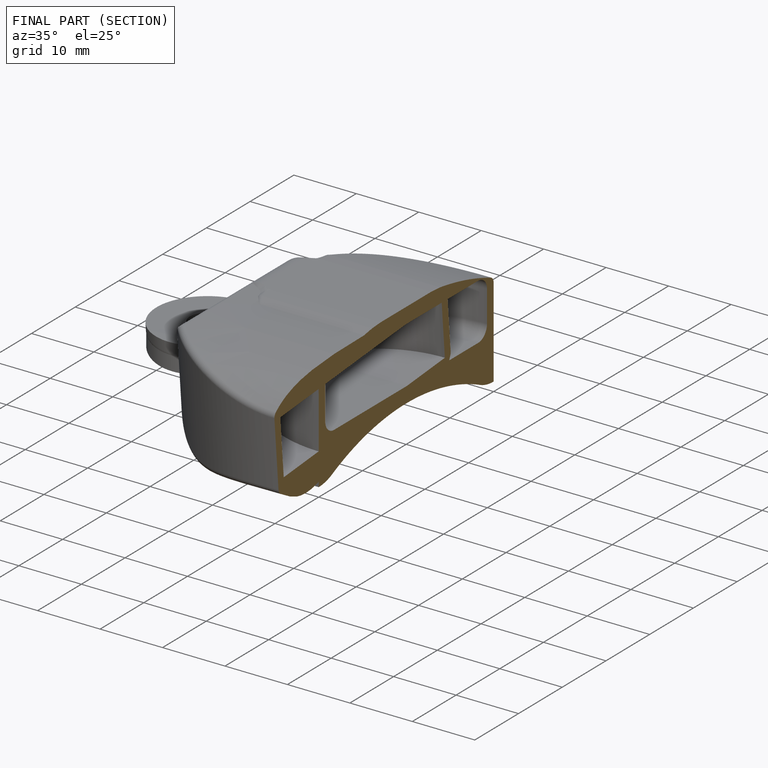
[diagram: finished part — half-section view (interior)]
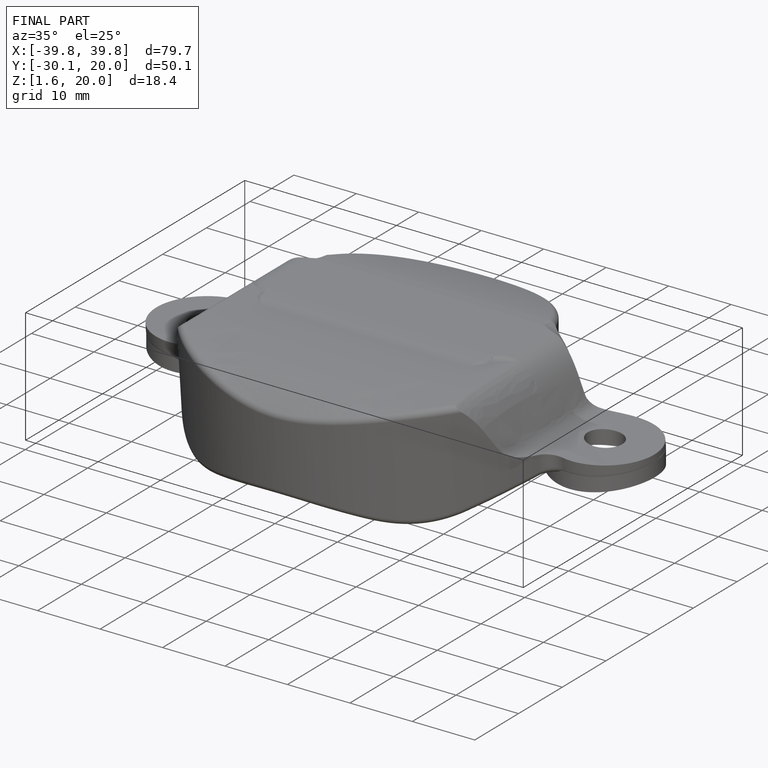
[diagram: finished part — iso view with bounding-box wireframe]
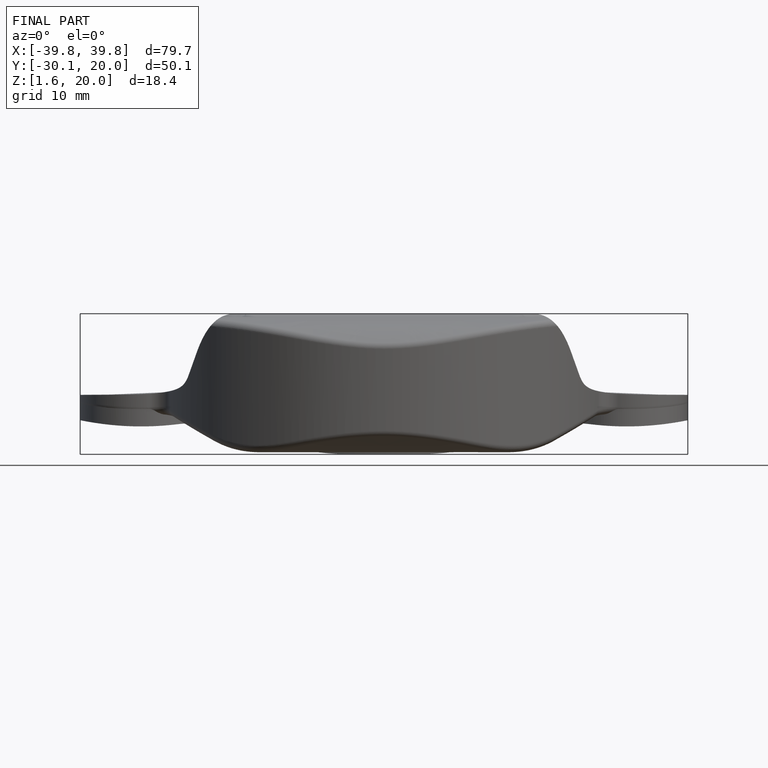
[diagram: finished part — front view with bounding-box wireframe]
